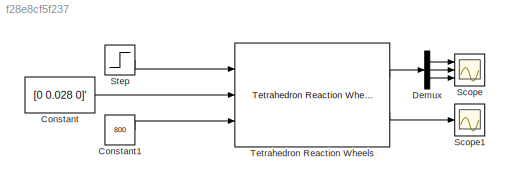
MODEL slx_f28e8cf5f237
KIND model
CONFIG AbsTol = auto
CONFIG FixedStep = auto
CONFIG MaxStep = auto
CONFIG MinStep = auto
CONFIG RelTol = 1e-3
CONFIG SampleTimeConstraint = Unconstrained
CONFIG Solver = VariableStepAuto
CONFIG SolverMode = Auto
CONFIG SolverName = VariableStepAuto
CONFIG StartTime = 0.0
CONFIG StopTime = 2
BLOCK [Constant] Constant
  Value = [0 0.028 0]'
  VectorParams1D = off
BLOCK [Constant] Constant1
  Value = 800
BLOCK [Demux] Demux
  DisplayOption = bar
  Outputs = 3
  Ports = [1, 3]
BLOCK [Scope] Scope
  NumInputPorts = 3
  Ports = [3]
  ScopeSpecificationString = Simulink.scopes.TimeScopeBlockCfg('CurrentConfiguration', extmgr.ConfigurationSet(extmgr.Configuration('Core','General UI',true),extmgr.Configuration('Core','Source UI',true),extmgr.Configuration('Sources','WiredSimulink',true),extmgr.Configuration('Visuals','Time Domain',true,'SerializedDisplays',{struct('MinYLimReal','-0.00023','MaxYLimReal','0.00003','YLabelReal','','MinYLimMag','0.000000000000...<+2736ch>
BLOCK [Scope] Scope1
  Ports = [1]
  ScopeSpecificationString = Simulink.scopes.TimeScopeBlockCfg('CurrentConfiguration', extmgr.ConfigurationSet(extmgr.Configuration('Core','General UI',true),extmgr.Configuration('Core','Source UI',true),extmgr.Configuration('Sources','WiredSimulink',true,'DataLoggingVariableName','ScopeData1'),extmgr.Configuration('Visuals','Time Domain',true,'SerializedDisplays',{struct('MinYLimReal','467.16442','MaxYLimReal','795.5202','YL...<+1528ch>
BLOCK [Step] Step
  After = [1 1 1 2]'
  Before = [1.5 1.5 1.5 1.5]'
  SampleTime = 0
  VectorParams1D = off
BLOCK [Reference] Tetrahedron Reaction Wheels  REF=aausat3_lib/Actuator Emulation/Tetrahedron Reaction Wheels  (lib defined in mdl_4157f6465749, slx_d9305f96731e)
  Ports = [3, 2]
  SourceBlock = aausat3_lib/Actuator Emulation/Tetrahedron Reaction Wheels
LINE Constant1:1 -> Tetrahedron Reaction Wheels:3
LINE Constant:1 -> Tetrahedron Reaction Wheels:2
LINE Demux:1 -> Scope:1
LINE Demux:2 -> Scope:2
LINE Demux:3 -> Scope:3
LINE Step:1 -> Tetrahedron Reaction Wheels:1
LINE Tetrahedron Reaction Wheels:1 -> Demux:1
LINE Tetrahedron Reaction Wheels:2 -> Scope1:1
